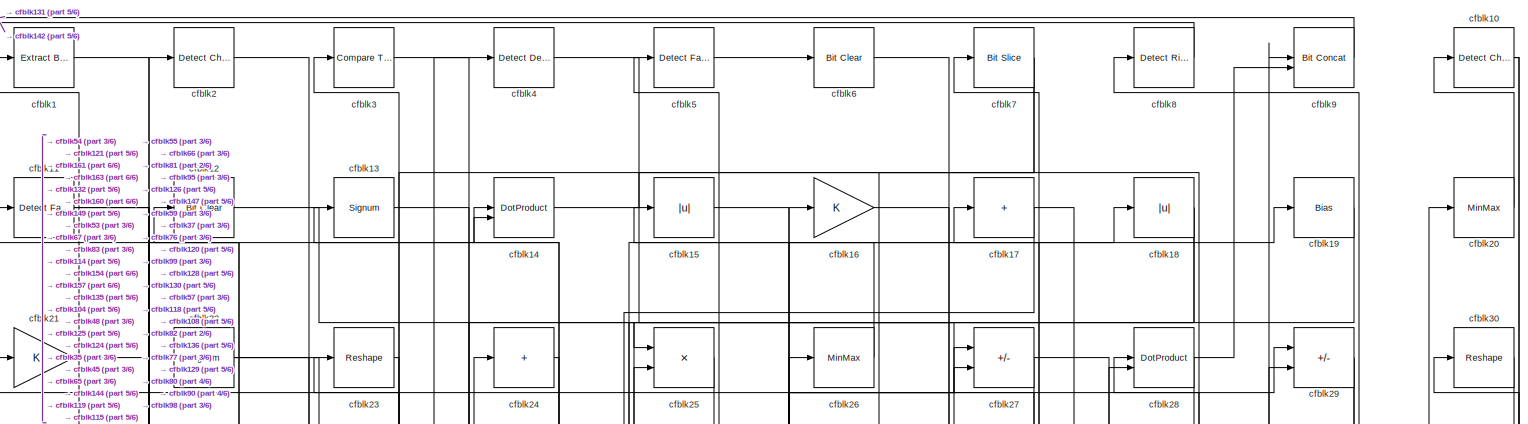
[diagram: root canvas - part 1/6, full width, top band]
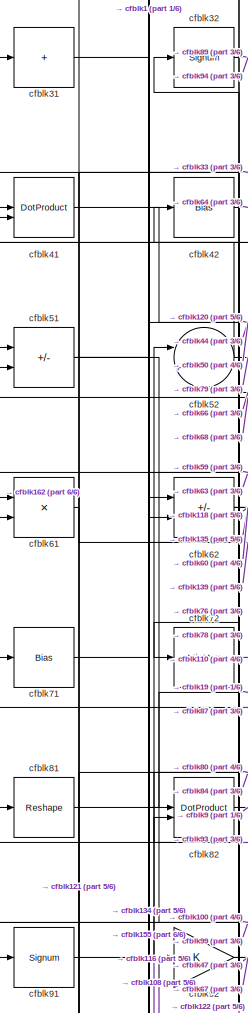
[diagram: root canvas - part 2/6, middle left region]
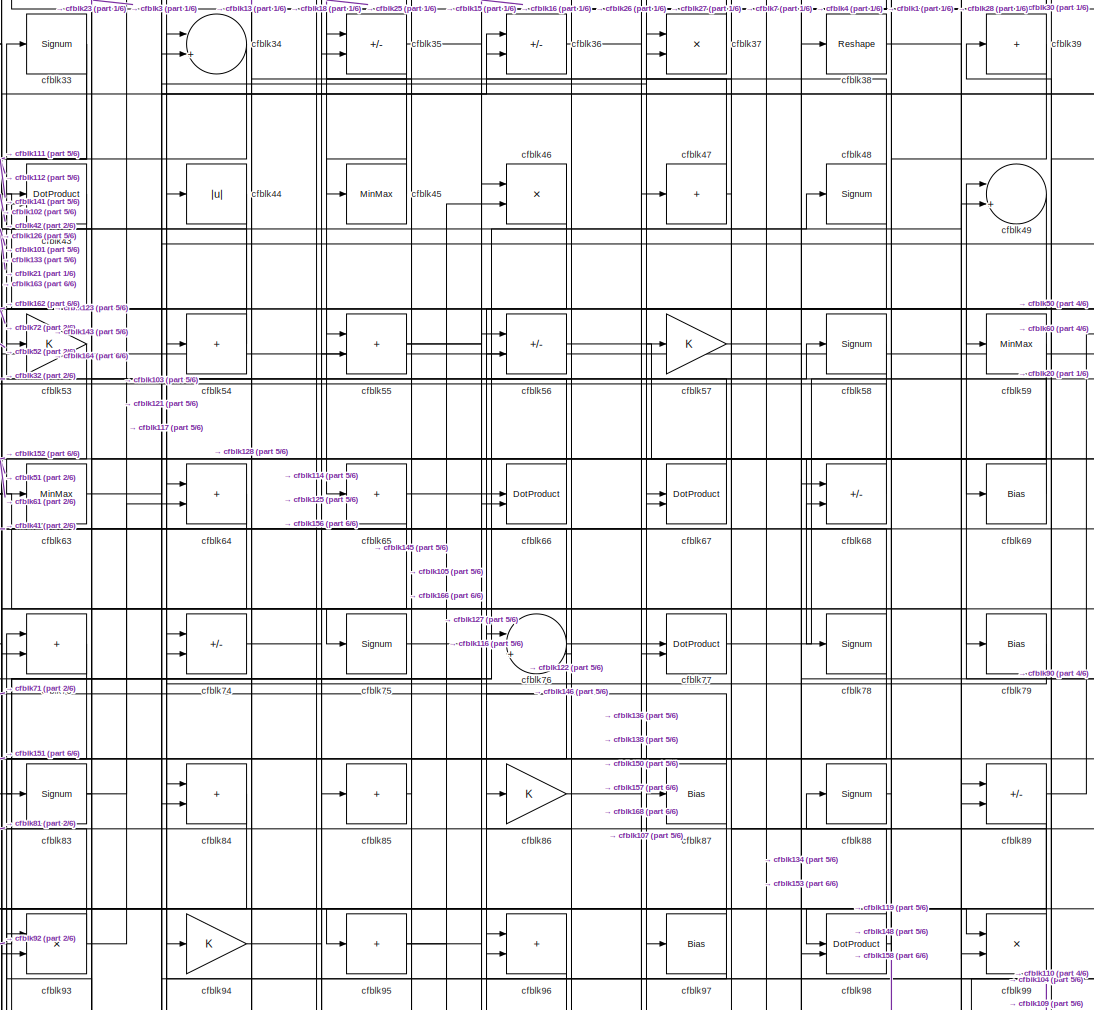
[diagram: root canvas - part 3/6, central region]
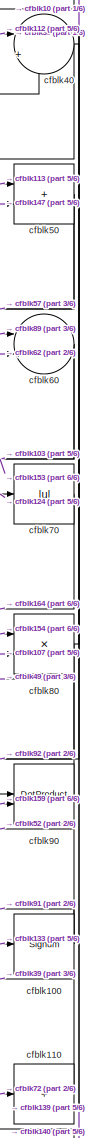
[diagram: root canvas - part 4/6, middle right region]
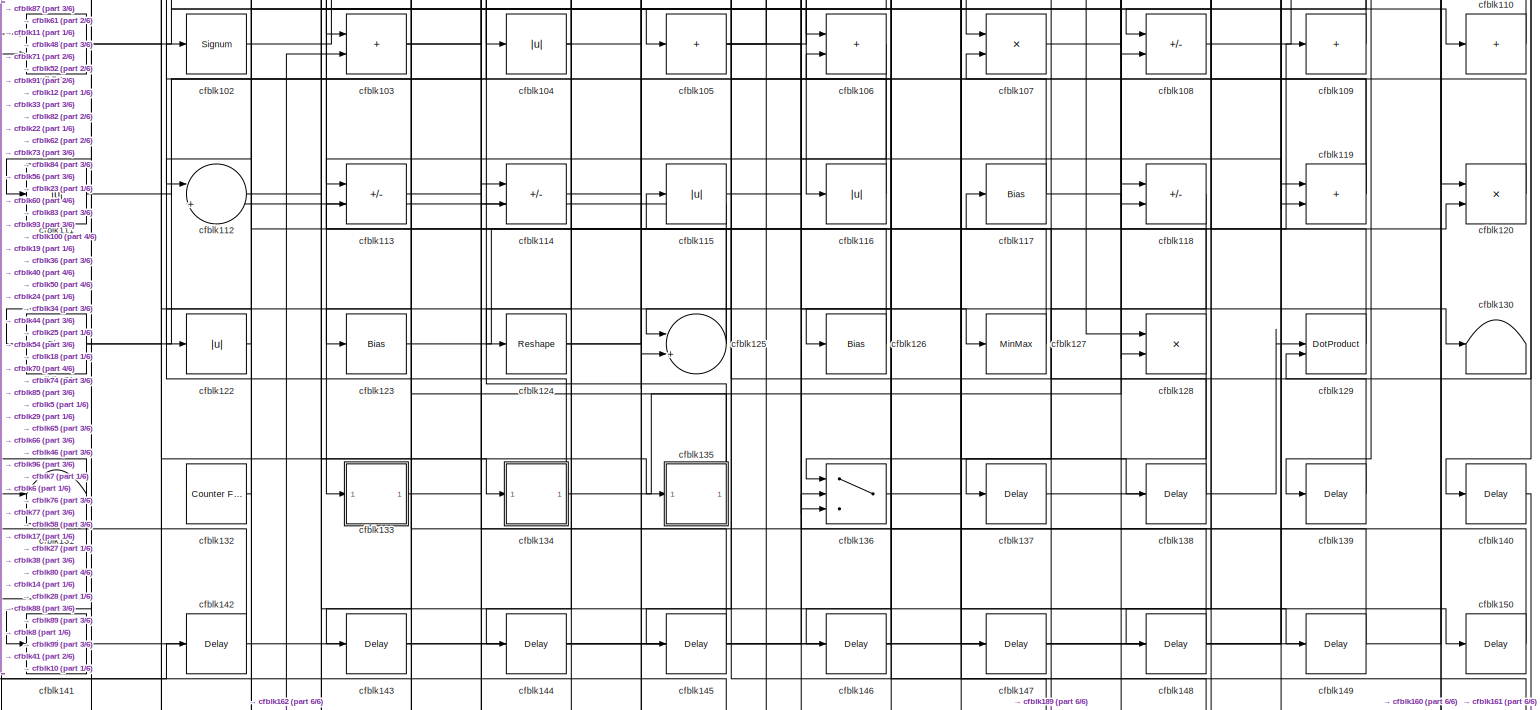
[diagram: root canvas - part 5/6, full width, middle band]
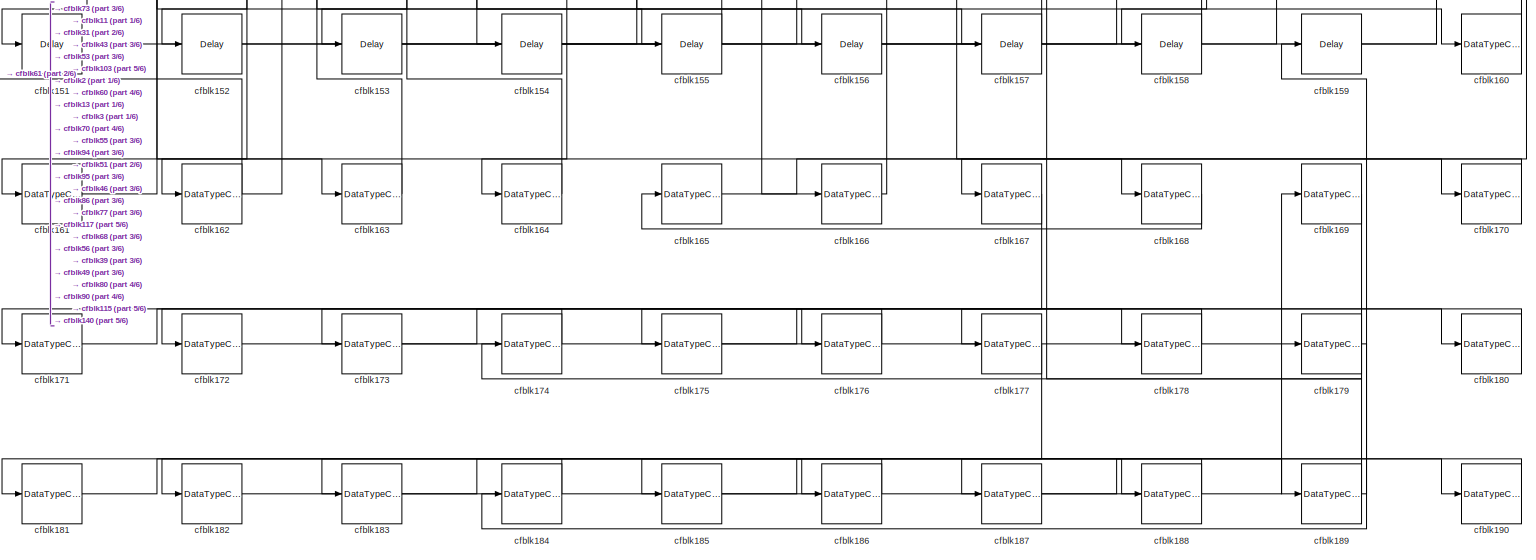
[diagram: root canvas - part 6/6, full width, bottom band]
MODEL slx_9d529b8874af
KIND model
CONFIG AbsTol = auto
CONFIG EnableMultiTasking = off
CONFIG FixedStep = auto
CONFIG MaxStep = auto
CONFIG MinStep = auto
CONFIG RelTol = 1e-3
CONFIG SampleTimeConstraint = Unconstrained
CONFIG SolverName = VariableStepAuto
CONFIG StartTime = 0.0
CONFIG StopTime = 10.0
BLOCK [Reference] cfblk1  REF=simulink/Logic and Bit
Operations/Extract Bits
  LibrarySourceBlock = hdlsllib/Logic and Bit\nOperations/Extract Bits
  SourceBlock = simulink/Logic and Bit\nOperations/Extract Bits
  SourceType = Extract Bits
BLOCK [Reference] cfblk10  REF=simulink/Logic and Bit
Operations/Detect
Change
  LibrarySourceBlock = hdlsllib/Logic and Bit\nOperations/Detect\nChange
  SourceBlock = simulink/Logic and Bit\nOperations/Detect\nChange
  SourceType = Detect Change
BLOCK [Signum] cfblk100
BLOCK [Product] cfblk101
  Inputs = */
  RndMeth = Zero
  SaturateOnIntegerOverflow = on
BLOCK [Signum] cfblk102
BLOCK [Sum] cfblk103
  IconShape = rectangular
BLOCK [Abs] cfblk104
  SaturateOnIntegerOverflow = off
BLOCK [Sum] cfblk105
  IconShape = rectangular
  Inputs = +
BLOCK [Sum] cfblk106
  IconShape = rectangular
BLOCK [Product] cfblk107
  Inputs = */
  RndMeth = Zero
  SaturateOnIntegerOverflow = on
BLOCK [Sum] cfblk108
  IconShape = rectangular
  Inputs = +-
BLOCK [Sum] cfblk109
  IconShape = rectangular
  Inputs = +
BLOCK [Reference] cfblk11  REF=hdlsllib/Logic and Bit
Operations/Detect Fall
Negative
  SourceBlock = hdlsllib/Logic and Bit\nOperations/Detect Fall\nNegative
  SourceType = Detect Fall Negative
BLOCK [Sum] cfblk110
  IconShape = rectangular
  Inputs = +
BLOCK [Abs] cfblk111
  SaturateOnIntegerOverflow = off
BLOCK [Sum] cfblk112
  Inputs = |++
BLOCK [Sum] cfblk113
  IconShape = rectangular
  Inputs = +-
BLOCK [Sum] cfblk114
  IconShape = rectangular
  Inputs = +-
BLOCK [Abs] cfblk115
  SaturateOnIntegerOverflow = off
BLOCK [Abs] cfblk116
  SaturateOnIntegerOverflow = off
BLOCK [Bias] cfblk117
  Bias = 0.0
  SaturateOnIntegerOverflow = off
BLOCK [Sum] cfblk118
  IconShape = rectangular
  Inputs = +-
BLOCK [Sum] cfblk119
  IconShape = rectangular
BLOCK [Reference] cfblk12  REF=simulink/Logic and Bit
Operations/Bit Clear
  LibrarySourceBlock = hdlsllib/Logic and Bit\nOperations/Bit Clear
  SourceBlock = simulink/Logic and Bit\nOperations/Bit Clear
  SourceType = Bit Clear
BLOCK [Product] cfblk120
  Inputs = */
  RndMeth = Zero
  SaturateOnIntegerOverflow = on
BLOCK [Bias] cfblk121
  Bias = 0.0
  SaturateOnIntegerOverflow = off
BLOCK [Abs] cfblk122
  SaturateOnIntegerOverflow = off
BLOCK [Bias] cfblk123
  Bias = 0.0
  SaturateOnIntegerOverflow = off
BLOCK [Reshape] cfblk124
BLOCK [Sum] cfblk125
  Inputs = |++
BLOCK [Bias] cfblk126
  Bias = 0.0
  SaturateOnIntegerOverflow = off
BLOCK [MinMax] cfblk127
BLOCK [Product] cfblk128
  Inputs = */
  RndMeth = Zero
  SaturateOnIntegerOverflow = on
BLOCK [DotProduct] cfblk129
  OutDataTypeStr = Inherit: Inherit via internal rule
BLOCK [Signum] cfblk13
BLOCK [Terminator] cfblk130
BLOCK [Terminator] cfblk131
BLOCK [Reference] cfblk132  REF=hdlsllib/Sources/Counter
Free-Running
  SourceBlock = hdlsllib/Sources/Counter\nFree-Running
  SourceType = Counter Free-Running
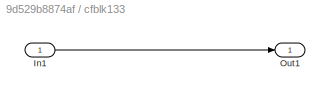
BLOCK [SubSystem] cfblk133
  LibrarySourceBlock = hdlsllib/Ports &\nSubsystems/Subsystem
BLOCK [Inport] cfblk133/In1
BLOCK [Outport] cfblk133/Out1
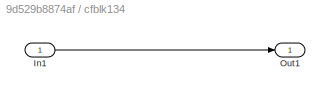
BLOCK [SubSystem] cfblk134
  LibrarySourceBlock = hdlsllib/Ports &\nSubsystems/Subsystem
BLOCK [Inport] cfblk134/In1
BLOCK [Outport] cfblk134/Out1
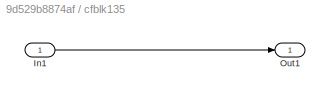
BLOCK [SubSystem] cfblk135
  LibrarySourceBlock = hdlsllib/Ports &\nSubsystems/Subsystem
BLOCK [Inport] cfblk135/In1
BLOCK [Outport] cfblk135/Out1
BLOCK [Switch] cfblk136
  InputSameDT = off
  SaturateOnIntegerOverflow = off
BLOCK [Delay] cfblk137
  InputPortMap = u0
  SampleTime = 1
BLOCK [Delay] cfblk138
  InputPortMap = u0
  SampleTime = 1
BLOCK [Delay] cfblk139
  InputPortMap = u0
  SampleTime = 1
BLOCK [DotProduct] cfblk14
  OutDataTypeStr = Inherit: Inherit via internal rule
BLOCK [Delay] cfblk140
  InputPortMap = u0
  SampleTime = 1
BLOCK [Delay] cfblk141
  InputPortMap = u0
  SampleTime = 1
BLOCK [Delay] cfblk142
  InputPortMap = u0
  SampleTime = 1
BLOCK [Delay] cfblk143
  InputPortMap = u0
  SampleTime = 1
BLOCK [Delay] cfblk144
  InputPortMap = u0
  SampleTime = 1
BLOCK [Delay] cfblk145
  InputPortMap = u0
  SampleTime = 1
BLOCK [Delay] cfblk146
  InputPortMap = u0
  SampleTime = 1
BLOCK [Delay] cfblk147
  InputPortMap = u0
  SampleTime = 1
BLOCK [Delay] cfblk148
  InputPortMap = u0
  SampleTime = 1
BLOCK [Delay] cfblk149
  InputPortMap = u0
  SampleTime = 1
BLOCK [Abs] cfblk15
  SaturateOnIntegerOverflow = off
BLOCK [Delay] cfblk150
  InputPortMap = u0
  SampleTime = 1
BLOCK [Delay] cfblk151
  InputPortMap = u0
  SampleTime = 1
BLOCK [Delay] cfblk152
  InputPortMap = u0
  SampleTime = 1
BLOCK [Delay] cfblk153
  InputPortMap = u0
  SampleTime = 1
BLOCK [Delay] cfblk154
  InputPortMap = u0
  SampleTime = 1
BLOCK [Delay] cfblk155
  InputPortMap = u0
  SampleTime = 1
BLOCK [Delay] cfblk156
  InputPortMap = u0
  SampleTime = 1
BLOCK [Delay] cfblk157
  InputPortMap = u0
  SampleTime = 1
BLOCK [Delay] cfblk158
  InputPortMap = u0
  SampleTime = 1
BLOCK [Delay] cfblk159
  InputPortMap = u0
  SampleTime = 1
BLOCK [Gain] cfblk16
BLOCK [DataTypeConversion] cfblk160
  OutDataTypeStr = uint8
  RndMeth = Floor
  SaturateOnIntegerOverflow = off
BLOCK [DataTypeConversion] cfblk161
  OutDataTypeStr = uint8
  RndMeth = Floor
  SaturateOnIntegerOverflow = off
BLOCK [DataTypeConversion] cfblk162
  RndMeth = Floor
  SaturateOnIntegerOverflow = off
BLOCK [DataTypeConversion] cfblk163
  OutDataTypeStr = uint8
  RndMeth = Floor
  SaturateOnIntegerOverflow = off
BLOCK [DataTypeConversion] cfblk164
  OutDataTypeStr = uint8
  RndMeth = Floor
  SaturateOnIntegerOverflow = off
BLOCK [DataTypeConversion] cfblk165
  RndMeth = Floor
  SaturateOnIntegerOverflow = off
BLOCK [DataTypeConversion] cfblk166
  OutDataTypeStr = uint8
  RndMeth = Floor
  SaturateOnIntegerOverflow = off
BLOCK [DataTypeConversion] cfblk167
  RndMeth = Floor
  SaturateOnIntegerOverflow = off
BLOCK [DataTypeConversion] cfblk168
  OutDataTypeStr = uint8
  RndMeth = Floor
  SaturateOnIntegerOverflow = off
BLOCK [DataTypeConversion] cfblk169
  RndMeth = Floor
  SaturateOnIntegerOverflow = off
BLOCK [Sum] cfblk17
  IconShape = rectangular
  Inputs = +
BLOCK [DataTypeConversion] cfblk170
  OutDataTypeStr = uint8
  RndMeth = Floor
  SaturateOnIntegerOverflow = off
BLOCK [DataTypeConversion] cfblk171
  RndMeth = Floor
  SaturateOnIntegerOverflow = off
BLOCK [DataTypeConversion] cfblk172
  OutDataTypeStr = uint8
  RndMeth = Floor
  SaturateOnIntegerOverflow = off
BLOCK [DataTypeConversion] cfblk173
  RndMeth = Floor
  SaturateOnIntegerOverflow = off
BLOCK [DataTypeConversion] cfblk174
  OutDataTypeStr = uint8
  RndMeth = Floor
  SaturateOnIntegerOverflow = off
BLOCK [DataTypeConversion] cfblk175
  RndMeth = Floor
  SaturateOnIntegerOverflow = off
BLOCK [DataTypeConversion] cfblk176
  OutDataTypeStr = uint8
  RndMeth = Floor
  SaturateOnIntegerOverflow = off
BLOCK [DataTypeConversion] cfblk177
  RndMeth = Floor
  SaturateOnIntegerOverflow = off
BLOCK [DataTypeConversion] cfblk178
  OutDataTypeStr = uint8
  RndMeth = Floor
  SaturateOnIntegerOverflow = off
BLOCK [DataTypeConversion] cfblk179
  RndMeth = Floor
  SaturateOnIntegerOverflow = off
BLOCK [Abs] cfblk18
  SaturateOnIntegerOverflow = off
BLOCK [DataTypeConversion] cfblk180
  OutDataTypeStr = uint8
  RndMeth = Floor
  SaturateOnIntegerOverflow = off
BLOCK [DataTypeConversion] cfblk181
  RndMeth = Floor
  SaturateOnIntegerOverflow = off
BLOCK [DataTypeConversion] cfblk182
  OutDataTypeStr = uint8
  RndMeth = Floor
  SaturateOnIntegerOverflow = off
BLOCK [DataTypeConversion] cfblk183
  RndMeth = Floor
  SaturateOnIntegerOverflow = off
BLOCK [DataTypeConversion] cfblk184
  OutDataTypeStr = uint8
  RndMeth = Floor
  SaturateOnIntegerOverflow = off
BLOCK [DataTypeConversion] cfblk185
  RndMeth = Floor
  SaturateOnIntegerOverflow = off
BLOCK [DataTypeConversion] cfblk186
  OutDataTypeStr = uint8
  RndMeth = Floor
  SaturateOnIntegerOverflow = off
BLOCK [DataTypeConversion] cfblk187
  RndMeth = Floor
  SaturateOnIntegerOverflow = off
BLOCK [DataTypeConversion] cfblk188
  OutDataTypeStr = uint8
  RndMeth = Floor
  SaturateOnIntegerOverflow = off
BLOCK [DataTypeConversion] cfblk189
  RndMeth = Floor
  SaturateOnIntegerOverflow = off
BLOCK [Bias] cfblk19
  Bias = 0.0
  SaturateOnIntegerOverflow = off
BLOCK [DataTypeConversion] cfblk190
  OutDataTypeStr = uint8
  RndMeth = Floor
  SaturateOnIntegerOverflow = off
BLOCK [Reference] cfblk2  REF=simulink/Logic and Bit
Operations/Detect
Change
  LibrarySourceBlock = hdlsllib/Logic and Bit\nOperations/Detect\nChange
  SourceBlock = simulink/Logic and Bit\nOperations/Detect\nChange
  SourceType = Detect Change
BLOCK [MinMax] cfblk20
BLOCK [Gain] cfblk21
BLOCK [Signum] cfblk22
BLOCK [Reshape] cfblk23
BLOCK [Sum] cfblk24
  IconShape = rectangular
  Inputs = +
BLOCK [Product] cfblk25
  Inputs = */
  RndMeth = Zero
  SaturateOnIntegerOverflow = on
BLOCK [MinMax] cfblk26
BLOCK [Sum] cfblk27
  IconShape = rectangular
  Inputs = +-
BLOCK [DotProduct] cfblk28
  OutDataTypeStr = Inherit: Inherit via internal rule
BLOCK [Sum] cfblk29
  IconShape = rectangular
  Inputs = +-
BLOCK [Reference] cfblk3  REF=hdlsllib/Logic and Bit
Operations/Compare
To Constant
  SourceBlock = hdlsllib/Logic and Bit\nOperations/Compare\nTo Constant
  SourceType = Compare To Constant
BLOCK [Reshape] cfblk30
BLOCK [Sum] cfblk31
  IconShape = rectangular
  Inputs = +
BLOCK [Signum] cfblk32
BLOCK [Signum] cfblk33
BLOCK [Sum] cfblk34
  Inputs = |++
BLOCK [Sum] cfblk35
  IconShape = rectangular
  Inputs = +-
BLOCK [Sum] cfblk36
  IconShape = rectangular
  Inputs = +-
BLOCK [Product] cfblk37
  Inputs = */
  RndMeth = Zero
  SaturateOnIntegerOverflow = on
BLOCK [Reshape] cfblk38
BLOCK [Sum] cfblk39
  IconShape = rectangular
  Inputs = +
BLOCK [Reference] cfblk4  REF=simulink/Logic and Bit
Operations/Detect
Decrease
  LibrarySourceBlock = hdlsllib/Logic and Bit\nOperations/Detect\nDecrease
  SourceBlock = simulink/Logic and Bit\nOperations/Detect\nDecrease
  SourceType = Detect Decrease
BLOCK [Sum] cfblk40
  Inputs = |++
BLOCK [DotProduct] cfblk41
  OutDataTypeStr = Inherit: Inherit via internal rule
BLOCK [Bias] cfblk42
  Bias = 0.0
  SaturateOnIntegerOverflow = off
BLOCK [DotProduct] cfblk43
  OutDataTypeStr = Inherit: Inherit via internal rule
BLOCK [Abs] cfblk44
  SaturateOnIntegerOverflow = off
BLOCK [MinMax] cfblk45
BLOCK [Product] cfblk46
  Inputs = */
  RndMeth = Zero
  SaturateOnIntegerOverflow = on
BLOCK [Sum] cfblk47
  IconShape = rectangular
  Inputs = +
BLOCK [Signum] cfblk48
BLOCK [Sum] cfblk49
  Inputs = |++
BLOCK [Reference] cfblk5  REF=hdlsllib/Logic and Bit
Operations/Detect Fall
Nonpositive
  SourceBlock = hdlsllib/Logic and Bit\nOperations/Detect Fall\nNonpositive
  SourceType = Detect Fall Nonpositive
BLOCK [Sum] cfblk50
  IconShape = rectangular
BLOCK [Sum] cfblk51
  IconShape = rectangular
  Inputs = +-
BLOCK [Sum] cfblk52
  Inputs = |++
BLOCK [Gain] cfblk53
BLOCK [Sum] cfblk54
  IconShape = rectangular
  Inputs = +
BLOCK [Sum] cfblk55
  IconShape = rectangular
BLOCK [Sum] cfblk56
  IconShape = rectangular
  Inputs = +-
BLOCK [Gain] cfblk57
BLOCK [Signum] cfblk58
BLOCK [MinMax] cfblk59
BLOCK [Reference] cfblk6  REF=simulink/Logic and Bit
Operations/Bit Clear
  LibrarySourceBlock = hdlsllib/Logic and Bit\nOperations/Bit Clear
  SourceBlock = simulink/Logic and Bit\nOperations/Bit Clear
  SourceType = Bit Clear
BLOCK [Sum] cfblk60
  Inputs = |++
BLOCK [Product] cfblk61
  Inputs = */
  RndMeth = Zero
  SaturateOnIntegerOverflow = on
BLOCK [Sum] cfblk62
  IconShape = rectangular
  Inputs = +-
BLOCK [MinMax] cfblk63
BLOCK [Sum] cfblk64
  IconShape = rectangular
BLOCK [Sum] cfblk65
  IconShape = rectangular
  Inputs = +
BLOCK [DotProduct] cfblk66
  OutDataTypeStr = Inherit: Inherit via internal rule
BLOCK [DotProduct] cfblk67
  OutDataTypeStr = Inherit: Inherit via internal rule
BLOCK [Sum] cfblk68
  IconShape = rectangular
  Inputs = +-
BLOCK [Bias] cfblk69
  Bias = 0.0
  SaturateOnIntegerOverflow = off
BLOCK [Reference] cfblk7  REF=hdlsllib/Logic and Bit
Operations/Bit Slice
  SourceBlock = hdlsllib/Logic and Bit\nOperations/Bit Slice
  SourceType = Bit Slice
BLOCK [Abs] cfblk70
  SaturateOnIntegerOverflow = off
BLOCK [Bias] cfblk71
  Bias = 0.0
  SaturateOnIntegerOverflow = off
BLOCK [MinMax] cfblk72
BLOCK [Sum] cfblk73
  IconShape = rectangular
BLOCK [Sum] cfblk74
  IconShape = rectangular
  Inputs = +-
BLOCK [Signum] cfblk75
BLOCK [Sum] cfblk76
  Inputs = |++
BLOCK [DotProduct] cfblk77
  OutDataTypeStr = Inherit: Inherit via internal rule
BLOCK [Signum] cfblk78
BLOCK [Bias] cfblk79
  Bias = 0.0
  SaturateOnIntegerOverflow = off
BLOCK [Reference] cfblk8  REF=hdlsllib/Logic and Bit
Operations/Detect Rise
Positive
  SourceBlock = hdlsllib/Logic and Bit\nOperations/Detect Rise\nPositive
  SourceType = Detect Rise Positive
BLOCK [Product] cfblk80
  Inputs = */
  RndMeth = Zero
  SaturateOnIntegerOverflow = on
BLOCK [Reshape] cfblk81
BLOCK [DotProduct] cfblk82
  OutDataTypeStr = Inherit: Inherit via internal rule
BLOCK [Signum] cfblk83
BLOCK [Sum] cfblk84
  IconShape = rectangular
BLOCK [Sum] cfblk85
  IconShape = rectangular
  Inputs = +
BLOCK [Gain] cfblk86
BLOCK [Bias] cfblk87
  Bias = 0.0
  SaturateOnIntegerOverflow = off
BLOCK [Signum] cfblk88
BLOCK [Sum] cfblk89
  IconShape = rectangular
  Inputs = +-
BLOCK [Reference] cfblk9  REF=hdlsllib/Logic and Bit
Operations/Bit Concat
  SourceBlock = hdlsllib/Logic and Bit\nOperations/Bit Concat
  SourceType = Bit Concat
BLOCK [DotProduct] cfblk90
  OutDataTypeStr = Inherit: Inherit via internal rule
BLOCK [Signum] cfblk91
BLOCK [Gain] cfblk92
BLOCK [Product] cfblk93
  Inputs = */
  RndMeth = Zero
  SaturateOnIntegerOverflow = on
BLOCK [Gain] cfblk94
BLOCK [Sum] cfblk95
  IconShape = rectangular
  Inputs = +
BLOCK [Sum] cfblk96
  IconShape = rectangular
BLOCK [Bias] cfblk97
  Bias = 0.0
  SaturateOnIntegerOverflow = off
BLOCK [DotProduct] cfblk98
  OutDataTypeStr = Inherit: Inherit via internal rule
BLOCK [Product] cfblk99
  Inputs = */
  RndMeth = Zero
  SaturateOnIntegerOverflow = on
NET cfblk100:1 -> cfblk52:2, cfblk91:1
NET cfblk101:1 -> cfblk105:1, cfblk48:1
LINE cfblk102:1 -> cfblk56:1
NET cfblk103:1 -> cfblk36:2, cfblk40:2
NET cfblk104:1 -> cfblk106:1, cfblk14:1
NET cfblk105:1 -> cfblk119:2, cfblk46:2, cfblk96:1
LINE cfblk106:1 -> cfblk113:1
LINE cfblk107:1 -> cfblk80:2
LINE cfblk108:1 -> cfblk8:1
LINE cfblk109:1 -> cfblk74:1
NET cfblk10:1 -> cfblk129:2, cfblk90:1
LINE cfblk110:1 -> cfblk39:1
LINE cfblk111:1 -> cfblk44:1
LINE cfblk112:1 -> cfblk40:1
LINE cfblk113:1 -> cfblk50:1
LINE cfblk114:1 -> cfblk85:1
LINE cfblk115:1 -> cfblk29:1
LINE cfblk116:1 -> cfblk52:1
NET cfblk117:1 -> cfblk120:2, cfblk34:1
LINE cfblk118:1 -> cfblk137:1
NET cfblk119:1 -> cfblk5:1, cfblk88:1
NET cfblk11:1 -> cfblk128:2, cfblk163:1
LINE cfblk120:1 -> cfblk17:1
NET cfblk121:1 -> cfblk14:2, cfblk34:2
LINE cfblk122:1 -> cfblk82:2
LINE cfblk123:1 -> cfblk109:1
NET cfblk124:1 -> cfblk18:1, cfblk70:1
NET cfblk125:1 -> cfblk112:2, cfblk11:1
LINE cfblk126:1 -> cfblk73:1
LINE cfblk127:1 -> cfblk93:1
NET cfblk128:1 -> cfblk146:1, cfblk54:1
LINE cfblk129:1 -> cfblk28:1
LINE cfblk12:1 -> cfblk25:1
LINE cfblk132:1 -> cfblk12:1
LINE cfblk133/In1:1 -> cfblk133/Out1:1
LINE cfblk133:1 -> cfblk100:1
LINE cfblk134/In1:1 -> cfblk134/Out1:1
NET cfblk134:1 -> cfblk102:1, cfblk38:1
LINE cfblk135/In1:1 -> cfblk135/Out1:1
NET cfblk135:1 -> cfblk23:1, cfblk24:1
LINE cfblk136:1 -> cfblk77:2
LINE cfblk137:1 -> cfblk129:1
LINE cfblk138:1 -> cfblk107:2
LINE cfblk139:1 -> cfblk62:1
LINE cfblk13:1 -> cfblk157:1
LINE cfblk140:1 -> cfblk161:1
LINE cfblk141:1 -> cfblk89:1
LINE cfblk142:1 -> cfblk101:1
LINE cfblk143:1 -> cfblk66:1
LINE cfblk144:1 -> cfblk29:2
LINE cfblk145:1 -> cfblk114:1
LINE cfblk146:1 -> cfblk76:1
LINE cfblk147:1 -> cfblk50:2
LINE cfblk148:1 -> cfblk106:2
LINE cfblk149:1 -> cfblk113:2
LINE cfblk14:1 -> cfblk108:1
LINE cfblk150:1 -> cfblk136:2
LINE cfblk151:1 -> cfblk55:2
LINE cfblk152:1 -> cfblk46:1
LINE cfblk153:1 -> cfblk68:1
LINE cfblk154:1 -> cfblk80:1
LINE cfblk155:1 -> cfblk51:1
LINE cfblk156:1 -> cfblk49:2
LINE cfblk157:1 -> cfblk77:1
LINE cfblk158:1 -> cfblk56:2
LINE cfblk159:1 -> cfblk90:2
LINE cfblk15:1 -> cfblk66:2
LINE cfblk160:1 -> cfblk115:1
LINE cfblk161:1 -> cfblk2:1
NET cfblk162:1 -> cfblk103:2, cfblk61:1
LINE cfblk163:1 -> cfblk43:1
LINE cfblk164:1 -> cfblk43:2
LINE cfblk165:1 -> cfblk170:1
LINE cfblk166:1 -> cfblk86:1
LINE cfblk167:1 -> cfblk172:1
LINE cfblk168:1 -> cfblk165:1
LINE cfblk169:1 -> cfblk174:1
LINE cfblk16:1 -> cfblk59:1
LINE cfblk170:1 -> cfblk167:1
LINE cfblk171:1 -> cfblk176:1
LINE cfblk172:1 -> cfblk169:1
LINE cfblk173:1 -> cfblk178:1
LINE cfblk174:1 -> cfblk171:1
LINE cfblk175:1 -> cfblk180:1
LINE cfblk176:1 -> cfblk173:1
LINE cfblk177:1 -> cfblk182:1
LINE cfblk178:1 -> cfblk175:1
LINE cfblk179:1 -> cfblk184:1
NET cfblk17:1 -> cfblk125:1, cfblk128:1
LINE cfblk180:1 -> cfblk177:1
LINE cfblk181:1 -> cfblk186:1
LINE cfblk182:1 -> cfblk179:1
LINE cfblk183:1 -> cfblk188:1
LINE cfblk184:1 -> cfblk181:1
LINE cfblk185:1 -> cfblk190:1
LINE cfblk186:1 -> cfblk183:1
LINE cfblk187:1 -> cfblk189:1
LINE cfblk188:1 -> cfblk185:1
NET cfblk189:1 -> cfblk117:1, cfblk159:1
NET cfblk18:1 -> cfblk35:2, cfblk65:1
LINE cfblk190:1 -> cfblk187:1
LINE cfblk19:1 -> cfblk114:2
LINE cfblk1:1 -> cfblk82:1
LINE cfblk20:1 -> cfblk10:1
LINE cfblk21:1 -> cfblk22:1
NET cfblk22:1 -> cfblk119:1, cfblk149:1
LINE cfblk23:1 -> cfblk53:1
LINE cfblk24:1 -> cfblk124:1
LINE cfblk25:1 -> cfblk144:1
LINE cfblk26:1 -> cfblk15:1
NET cfblk27:1 -> cfblk130:1, cfblk76:2
NET cfblk28:1 -> cfblk118:2, cfblk9:2
NET cfblk29:1 -> cfblk136:1, cfblk136:3
LINE cfblk2:1 -> cfblk160:1
LINE cfblk30:1 -> cfblk98:2
LINE cfblk31:1 -> cfblk155:1
NET cfblk32:1 -> cfblk89:2, cfblk94:1
NET cfblk33:1 -> cfblk111:1, cfblk112:1, cfblk41:2
LINE cfblk34:1 -> cfblk141:1
NET cfblk35:1 -> cfblk27:1, cfblk45:1
LINE cfblk36:1 -> cfblk138:1
LINE cfblk37:1 -> cfblk1:1
LINE cfblk38:1 -> cfblk99:2
LINE cfblk39:1 -> cfblk158:1
LINE cfblk3:1 -> cfblk154:1
NET cfblk40:1 -> cfblk139:1, cfblk140:1
LINE cfblk41:1 -> cfblk120:1
LINE cfblk42:1 -> cfblk64:1
LINE cfblk43:1 -> cfblk162:1
LINE cfblk44:1 -> cfblk72:1
LINE cfblk45:1 -> cfblk25:2
LINE cfblk46:1 -> cfblk55:1
NET cfblk47:1 -> cfblk36:1, cfblk87:1
NET cfblk48:1 -> cfblk116:1, cfblk13:1
LINE cfblk49:1 -> cfblk97:1
LINE cfblk4:1 -> cfblk67:1
NET cfblk50:1 -> cfblk57:1, cfblk62:2
NET cfblk51:1 -> cfblk63:1, cfblk84:2, cfblk99:1
NET cfblk52:1 -> cfblk31:1, cfblk79:1
LINE cfblk53:1 -> cfblk152:1
LINE cfblk54:1 -> cfblk21:1
NET cfblk55:1 -> cfblk26:1, cfblk27:2
LINE cfblk56:1 -> cfblk69:1
LINE cfblk57:1 -> cfblk28:2
LINE cfblk58:1 -> cfblk107:1
NET cfblk59:1 -> cfblk61:2, cfblk75:1, cfblk78:1
LINE cfblk5:1 -> cfblk6:1
NET cfblk60:1 -> cfblk103:1, cfblk153:1
LINE cfblk61:1 -> cfblk121:1
NET cfblk62:1 -> cfblk118:1, cfblk135:1, cfblk60:2
LINE cfblk63:1 -> cfblk37:1
LINE cfblk64:1 -> cfblk73:2
NET cfblk65:1 -> cfblk127:1, cfblk143:1
LINE cfblk66:1 -> cfblk32:1
LINE cfblk67:1 -> cfblk3:1
LINE cfblk68:1 -> cfblk51:2
LINE cfblk69:1 -> cfblk33:1
LINE cfblk6:1 -> cfblk147:1
LINE cfblk70:1 -> cfblk164:1
LINE cfblk71:1 -> cfblk134:1
LINE cfblk72:1 -> cfblk110:1
LINE cfblk73:1 -> cfblk151:1
LINE cfblk74:1 -> cfblk125:2
LINE cfblk75:1 -> cfblk58:1
NET cfblk76:1 -> cfblk145:1, cfblk150:1, cfblk41:1
LINE cfblk77:1 -> cfblk20:1
NET cfblk78:1 -> cfblk42:1, cfblk84:1
LINE cfblk79:1 -> cfblk74:2
NET cfblk7:1 -> cfblk126:1, cfblk83:1
NET cfblk80:1 -> cfblk30:1, cfblk92:1
LINE cfblk81:1 -> cfblk19:1
LINE cfblk82:1 -> cfblk9:1
NET cfblk83:1 -> cfblk123:1, cfblk4:1
LINE cfblk84:1 -> cfblk133:1
LINE cfblk85:1 -> cfblk35:1
LINE cfblk86:1 -> cfblk168:1
NET cfblk87:1 -> cfblk101:2, cfblk71:1
LINE cfblk88:1 -> cfblk148:1
NET cfblk89:1 -> cfblk60:1, cfblk93:2, cfblk98:1
LINE cfblk8:1 -> cfblk142:1
LINE cfblk90:1 -> cfblk49:1
LINE cfblk91:1 -> cfblk108:2
NET cfblk92:1 -> cfblk47:1, cfblk67:2
NET cfblk93:1 -> cfblk64:2, cfblk81:1
LINE cfblk94:1 -> cfblk156:1
NET cfblk95:1 -> cfblk166:1, cfblk16:1
LINE cfblk96:1 -> cfblk122:1
NET cfblk97:1 -> cfblk95:1, cfblk96:2
NET cfblk98:1 -> cfblk37:2, cfblk68:2
NET cfblk99:1 -> cfblk104:1, cfblk7:1
LINE cfblk9:1 -> cfblk131:1
note: NET lines group one-source signal fan-out (src -> all destinations, sorted); 1:1 wires keep LINE
